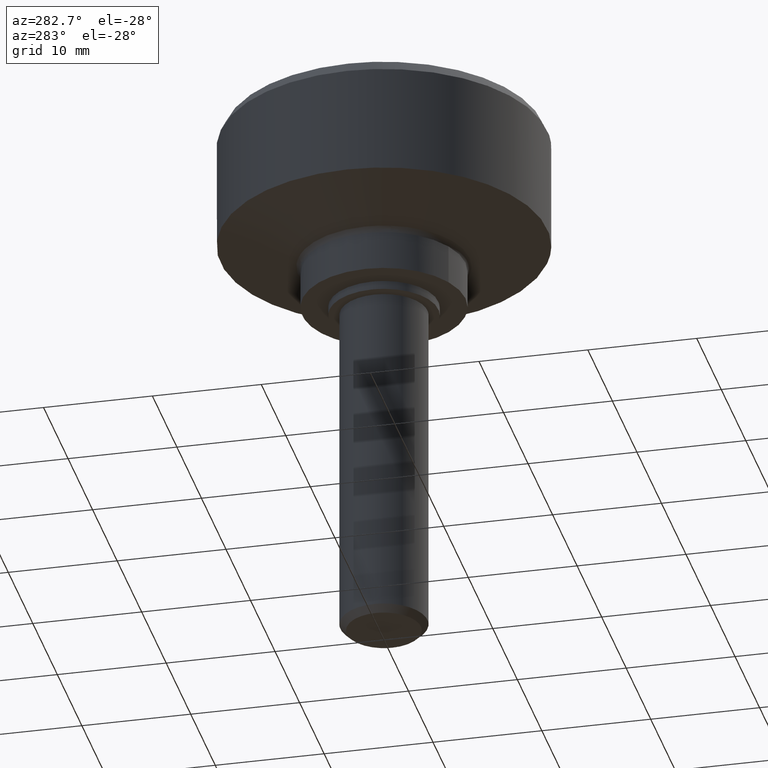
[diagram: clean part render]
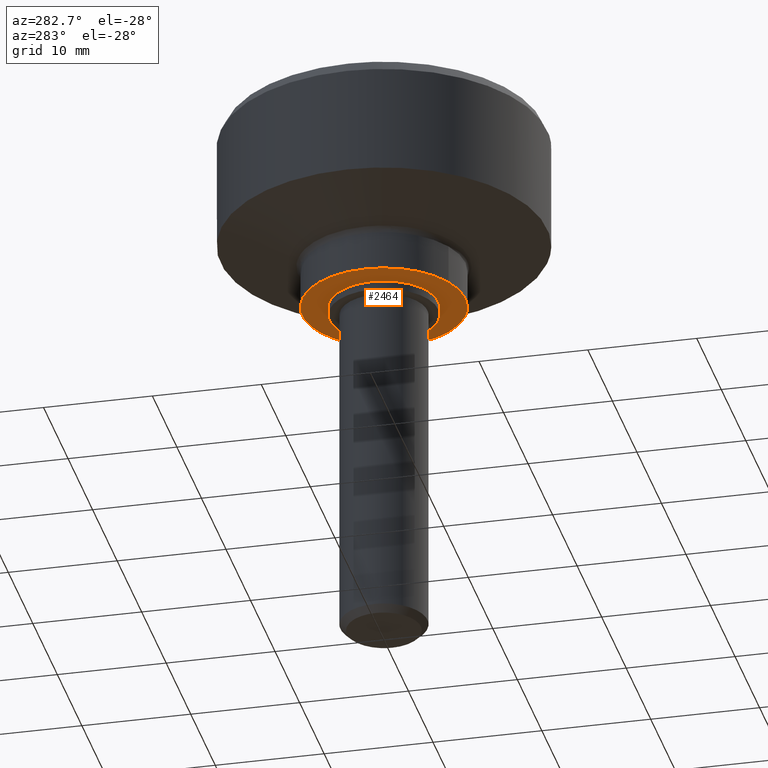
[diagram: same view with one face highlighted and labeled with its STEP entity id]
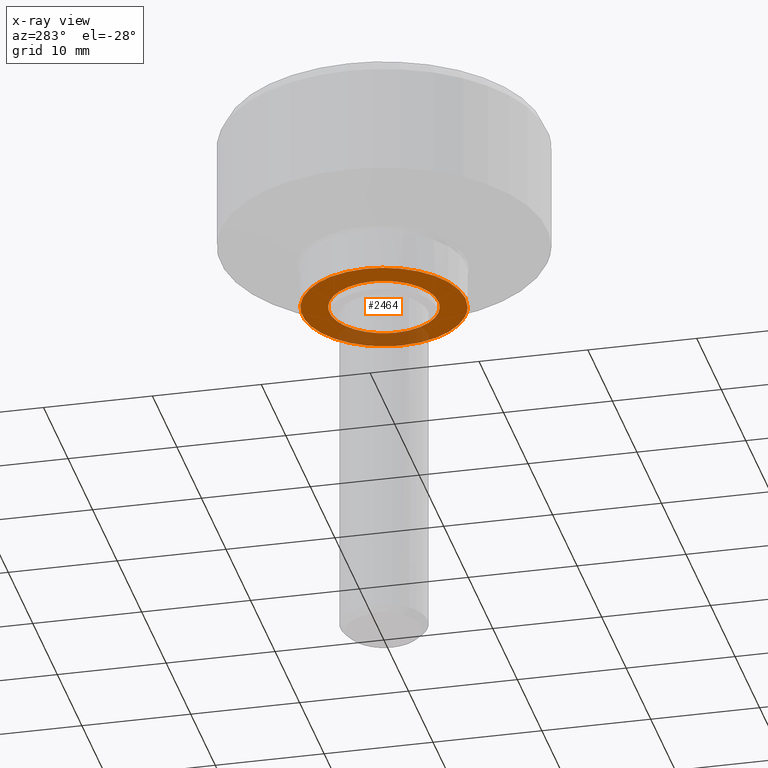
[diagram: x-ray of the same camera — body ghosted, the highlighted face saturated]
A machine part, auxiliary view. The second image highlights one B-rep face of the part: STEP entity #2464.
The next image is the same camera in x-ray: the body ghosted, the highlighted face saturated — about 21% of this face is hidden behind the body in this view.
In plain terms, the highlighted face is a freeform B-spline surface patch.
Its self-contained STEP definition (entity closure, byte-faithful):
#1251=CARTESIAN_POINT('',(-0.590171173324832,4.965047631813453,0.800002999999990));
#1252=VERTEX_POINT('',#1251);
#1253=CARTESIAN_POINT('',(5.0,0.0,0.800002999999990));
#1254=VERTEX_POINT('',#1253);
#1255=CARTESIAN_POINT('',(-0.590171173324832,4.965047631813453,0.800002999999990));
#1256=CARTESIAN_POINT('',(-0.296120598301024,5.000000000000001,0.800002999999990));
#1257=CARTESIAN_POINT('',(0.0,5.0,0.800002999999990));
#1258=CARTESIAN_POINT('',(5.000000000000001,5.000000000000001,0.800002999999990));
#1259=CARTESIAN_POINT('',(5.0,0.0,0.800002999999990));
#1267=(BOUNDED_CURVE()B_SPLINE_CURVE(2,(#1255,#1256,#1257,#1258,#1259),.UNSPECIFIED.,.F.,.U.)B_SPLINE_CURVE_WITH_KNOTS((3,2,3),(0.229562473512850,0.250000000000000,0.500000000000000),.UNSPECIFIED.)CURVE()GEOMETRIC_REPRESENTATION_ITEM()RATIONAL_B_SPLINE_CURVE((0.956026754182410,0.976055948330374,1.0,0.707106781186548,1.0))REPRESENTATION_ITEM(''));
#1268=EDGE_CURVE('',#1252,#1254,#1267,.T.);
#1270=CARTESIAN_POINT('',(0.305242697724841,-4.990673992106242,0.800002999999990));
#1271=VERTEX_POINT('',#1270);
#1272=CARTESIAN_POINT('',(5.0,0.0,0.800002999999990));
#1273=CARTESIAN_POINT('',(5.0,-4.703530334432992,0.800002999999990));
#1274=CARTESIAN_POINT('',(0.305242697724841,-4.990673992106243,0.800002999999990));
#1282=(BOUNDED_CURVE()B_SPLINE_CURVE(2,(#1272,#1273,#1274),.UNSPECIFIED.,.F.,.U.)B_SPLINE_CURVE_WITH_KNOTS((3,3),(0.500000000000000,0.739332962238472),.UNSPECIFIED.)CURVE()GEOMETRIC_REPRESENTATION_ITEM()RATIONAL_B_SPLINE_CURVE((1.0,0.719603993287262,0.976072041665709))REPRESENTATION_ITEM(''));
#1283=EDGE_CURVE('',#1254,#1271,#1282,.T.);
#1350=CARTESIAN_POINT('',(-5.0,0.0,0.800002999999990));
#1351=VERTEX_POINT('',#1350);
#1352=CARTESIAN_POINT('',(-5.0,0.0,0.800002999999990));
#1353=CARTESIAN_POINT('',(-5.0,4.440872629682908,0.800002999999990));
#1354=CARTESIAN_POINT('',(-0.590171173324832,4.965047631813453,0.800002999999990));
#1362=(BOUNDED_CURVE()B_SPLINE_CURVE(2,(#1352,#1353,#1354),.UNSPECIFIED.,.F.,.U.)B_SPLINE_CURVE_WITH_KNOTS((3,3),(0.0,0.229562473512850),.UNSPECIFIED.)CURVE()GEOMETRIC_REPRESENTATION_ITEM()RATIONAL_B_SPLINE_CURVE((1.0,0.731050832856173,0.956026754182410))REPRESENTATION_ITEM(''));
#1363=EDGE_CURVE('',#1351,#1252,#1362,.T.);
#1397=CARTESIAN_POINT('',(0.305242697724841,-4.990673992106242,0.800002999999990));
#1398=CARTESIAN_POINT('',(0.152763816543643,-5.000000000000001,0.800002999999990));
#1399=CARTESIAN_POINT('',(0.0,-5.0,0.800002999999990));
#1400=CARTESIAN_POINT('',(-5.000000000000001,-5.000000000000001,0.800002999999990));
#1401=CARTESIAN_POINT('',(-5.0,0.0,0.800002999999990));
#1409=(BOUNDED_CURVE()B_SPLINE_CURVE(2,(#1397,#1398,#1399,#1400,#1401),.UNSPECIFIED.,.F.,.U.)B_SPLINE_CURVE_WITH_KNOTS((3,2,3),(0.739332962238472,0.750000000000000,1.0),.UNSPECIFIED.)CURVE()GEOMETRIC_REPRESENTATION_ITEM()RATIONAL_B_SPLINE_CURVE((0.976072041665709,0.987502787899286,1.0,0.707106781186548,1.0))REPRESENTATION_ITEM(''));
#1410=EDGE_CURVE('',#1271,#1351,#1409,.T.);
#1520=CARTESIAN_POINT('',(1.623285886490788,-7.322222540362166,0.800002999999990));
#1521=VERTEX_POINT('',#1520);
#1527=CARTESIAN_POINT('',(7.500000000000000,0.0,0.800002999999990));
#1528=VERTEX_POINT('',#1527);
#1529=CARTESIAN_POINT('',(7.500000000000000,0.0,0.800002999999990));
#1530=CARTESIAN_POINT('',(7.499999999999999,-6.019395833477774,0.800002999999990));
#1531=CARTESIAN_POINT('',(1.623285886490788,-7.322222540362166,0.800002999999990));
#1539=(BOUNDED_CURVE()B_SPLINE_CURVE(2,(#1529,#1530,#1531),.UNSPECIFIED.,.F.,.U.)B_SPLINE_CURVE_WITH_KNOTS((3,3),(0.500000000000000,0.712960136138132),.UNSPECIFIED.)CURVE()GEOMETRIC_REPRESENTATION_ITEM()RATIONAL_B_SPLINE_CURVE((1.0,0.750501680990206,0.926068929840899))REPRESENTATION_ITEM(''));
#1540=EDGE_CURVE('',#1528,#1521,#1539,.T.);
#1542=CARTESIAN_POINT('',(-7.500000000000000,0.0,0.800002999999990));
#1543=VERTEX_POINT('',#1542);
#1544=CARTESIAN_POINT('',(-7.500000000000000,0.0,0.800002999999990));
#1545=CARTESIAN_POINT('',(-7.500000000000000,7.500000000000000,0.800002999999990));
#1546=CARTESIAN_POINT('',(0.0,7.500000000000000,0.800002999999990));
#1547=CARTESIAN_POINT('',(7.500000000000000,7.500000000000000,0.800002999999990));
#1548=CARTESIAN_POINT('',(7.500000000000000,0.0,0.800002999999990));
#1556=(BOUNDED_CURVE()B_SPLINE_CURVE(2,(#1544,#1545,#1546,#1547,#1548),.UNSPECIFIED.,.F.,.U.)B_SPLINE_CURVE_WITH_KNOTS((3,2,3),(0.0,0.250000000000000,0.500000000000000),.UNSPECIFIED.)CURVE()GEOMETRIC_REPRESENTATION_ITEM()RATIONAL_B_SPLINE_CURVE((1.0,0.707106781186547,1.0,0.707106781186547,1.0))REPRESENTATION_ITEM(''));
#1557=EDGE_CURVE('',#1543,#1528,#1556,.T.);
#1559=CARTESIAN_POINT('',(-3.382610984584499,-6.693873536821209,0.800002999999990));
#1560=VERTEX_POINT('',#1559);
#1561=CARTESIAN_POINT('',(-3.382610984584499,-6.693873536821210,0.800002999999990));
#1562=CARTESIAN_POINT('',(-7.500000000000001,-4.613235885880550,0.800002999999990));
#1563=CARTESIAN_POINT('',(-7.500000000000000,0.0,0.800002999999990));
#1571=(BOUNDED_CURVE()B_SPLINE_CURVE(2,(#1561,#1562,#1563),.UNSPECIFIED.,.F.,.U.)B_SPLINE_CURVE_WITH_KNOTS((3,3),(0.826687003635874,1.0),.UNSPECIFIED.)CURVE()GEOMETRIC_REPRESENTATION_ITEM()RATIONAL_B_SPLINE_CURVE((0.875430364133806,0.796951194530828,1.0))REPRESENTATION_ITEM(''));
#1572=EDGE_CURVE('',#1560,#1543,#1571,.T.);
#1612=CARTESIAN_POINT('',(1.623285886490788,-7.322222540362166,0.800002999999990));
#1613=CARTESIAN_POINT('',(0.821377773511061,-7.500000000000000,0.800002999999990));
#1614=CARTESIAN_POINT('',(0.0,-7.500000000000000,0.800002999999990));
#1615=CARTESIAN_POINT('',(-1.787361449894032,-7.499999999999999,0.800002999999990));
#1616=CARTESIAN_POINT('',(-3.382610984584499,-6.693873536821210,0.800002999999990));
#1624=(BOUNDED_CURVE()B_SPLINE_CURVE(2,(#1612,#1613,#1614,#1615,#1616),.UNSPECIFIED.,.F.,.U.)B_SPLINE_CURVE_WITH_KNOTS((3,2,3),(0.712960136138132,0.750000000000000,0.826687003635874),.UNSPECIFIED.)CURVE()GEOMETRIC_REPRESENTATION_ITEM()RATIONAL_B_SPLINE_CURVE((0.926068929840899,0.956605100196342,1.0,0.910155586655720,0.875430364133806))REPRESENTATION_ITEM(''));
#1625=EDGE_CURVE('',#1521,#1560,#1624,.T.);
#2447=CARTESIAN_POINT('',(-8.249249970927089,-8.248813884624809,0.800002999999990));
#2448=CARTESIAN_POINT('',(8.249250373258443,-8.248813884624809,0.800002999999990));
#2449=CARTESIAN_POINT('',(-8.249249970927089,8.249229627022116,0.800002999999990));
#2450=CARTESIAN_POINT('',(8.249250373258443,8.249229627022116,0.800002999999990));
#2451=B_SPLINE_SURFACE_WITH_KNOTS('',1,1,((#2447,#2449),(#2448,#2450)),.UNSPECIFIED.,.F.,.F.,.U.,(2,2),(2,2),(0.0,16.498500344185530),(0.0,16.498043511646930),.UNSPECIFIED.);
#2452=ORIENTED_EDGE('',*,*,#1557,.T.);
#2453=ORIENTED_EDGE('',*,*,#1540,.T.);
#2454=ORIENTED_EDGE('',*,*,#1625,.T.);
#2455=ORIENTED_EDGE('',*,*,#1572,.T.);
#2456=EDGE_LOOP('',(#2452,#2453,#2454,#2455));
#2457=FACE_OUTER_BOUND('',#2456,.T.);
#2458=ORIENTED_EDGE('',*,*,#1283,.F.);
#2459=ORIENTED_EDGE('',*,*,#1268,.F.);
#2460=ORIENTED_EDGE('',*,*,#1363,.F.);
#2461=ORIENTED_EDGE('',*,*,#1410,.F.);
#2462=EDGE_LOOP('',(#2458,#2459,#2460,#2461));
#2463=FACE_BOUND('',#2462,.T.);
#2464=ADVANCED_FACE('',(#2457,#2463),#2451,.F.);